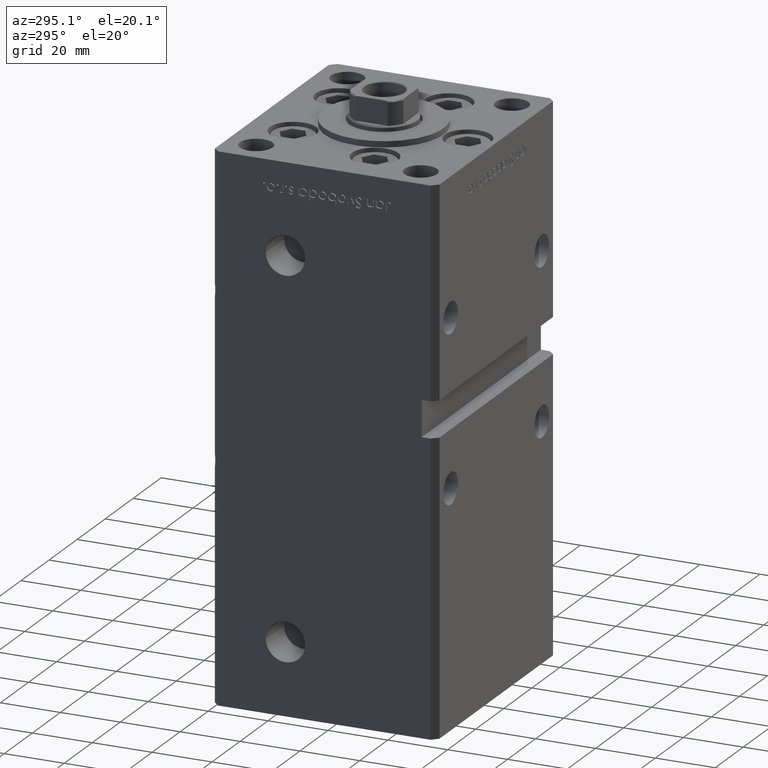
[diagram: clean part render]
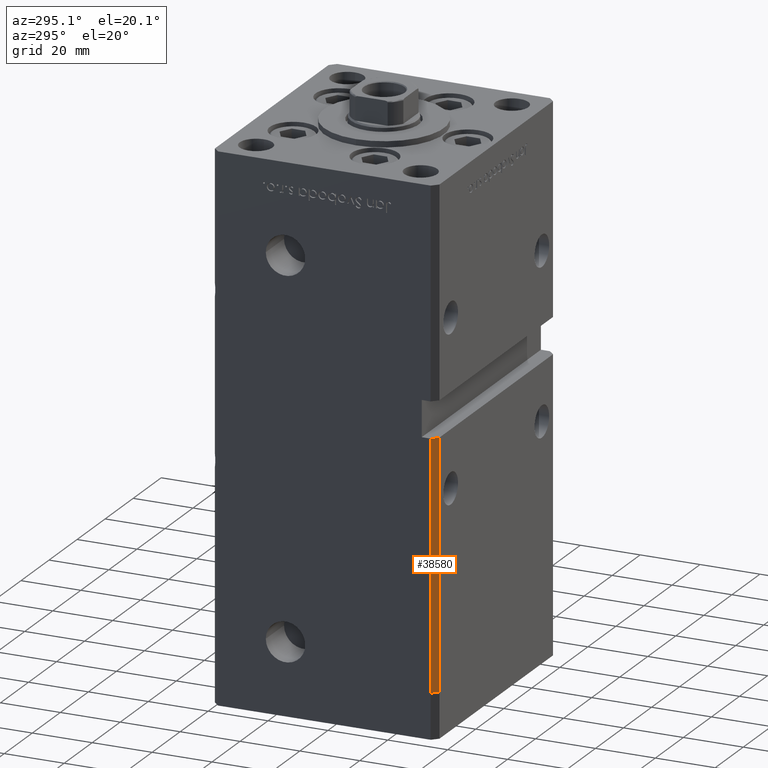
[diagram: same view with one face highlighted and labeled with its STEP entity id]
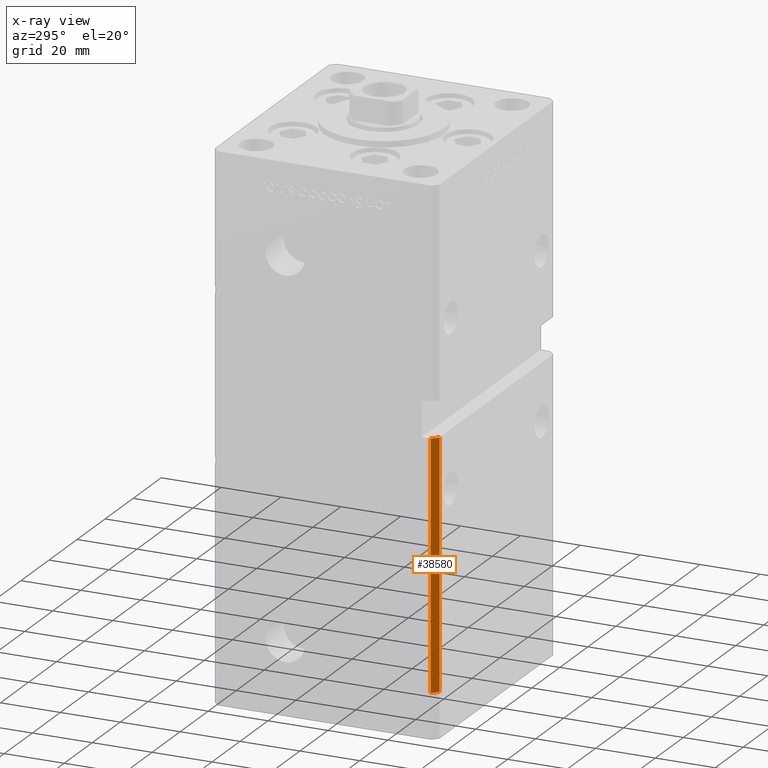
[diagram: x-ray of the same camera — body ghosted, the highlighted face saturated]
A machine part, auxiliary view. The second image highlights one B-rep face of the part: STEP entity #38580.
The next image is the same camera in x-ray: the body ghosted, the highlighted face saturated — about 0% of this face is hidden behind the body in this view.
In plain terms, the highlighted planar face has unit normal (0.7071, 0.7071, 0).
Its self-contained STEP definition (entity closure, byte-faithful):
#100 = AXIS2_PLACEMENT_3D ( 'NONE', #38107, #26287, #30844 ) ;
#2326 = CARTESIAN_POINT ( 'NONE',  ( -40.49999999999998579, -37.50000000000000711, 0.000000000000000000 ) ) ;
#4829 = ORIENTED_EDGE ( 'NONE', *, *, #19414, .T. ) ;
#5032 = PLANE ( 'NONE',  #100 ) ;
#7201 = CARTESIAN_POINT ( 'NONE',  ( -42.49999999999998579, -35.50000000000000711, 82.00000000000000000 ) ) ;
#7615 = VECTOR ( 'NONE', #22581, 1000.000000000000000 ) ;
#10308 = DIRECTION ( 'NONE',  ( 0.7071067811865474617, -0.7071067811865474617, 0.000000000000000000 ) ) ;
#13216 = ORIENTED_EDGE ( 'NONE', *, *, #39800, .T. ) ;
#14959 = VERTEX_POINT ( 'NONE', #18241 ) ;
#15550 = DIRECTION ( 'NONE',  ( -0.7071067811865474617, 0.7071067811865474617, 0.000000000000000000 ) ) ;
#16876 = LINE ( 'NONE', #33260, #42268 ) ;
#18190 = EDGE_CURVE ( 'NONE', #14959, #27930, #35720, .T. ) ;
#18241 = CARTESIAN_POINT ( 'NONE',  ( -40.49999999999998579, -37.50000000000000711, 82.00000000000000000 ) ) ;
#18388 = CARTESIAN_POINT ( 'NONE',  ( -42.49999999999998579, -35.50000000000000711, 0.000000000000000000 ) ) ;
#19180 = LINE ( 'NONE', #18388, #21624 ) ;
#19414 = EDGE_CURVE ( 'NONE', #27930, #51203, #42996, .T. ) ;
#21624 = VECTOR ( 'NONE', #10308, 1000.000000000000114 ) ;
#22581 = DIRECTION ( 'NONE',  ( -0.000000000000000000, -0.000000000000000000, -1.000000000000000000 ) ) ;
#23829 = EDGE_CURVE ( 'NONE', #14959, #37892, #16876, .T. ) ;
#26287 = DIRECTION ( 'NONE',  ( 0.7071067811865475727, 0.7071067811865475727, -0.000000000000000000 ) ) ;
#27930 = VERTEX_POINT ( 'NONE', #29221 ) ;
#29221 = CARTESIAN_POINT ( 'NONE',  ( -42.49999999999998579, -35.49999999999996447, 82.00000000000000000 ) ) ;
#30844 = DIRECTION ( 'NONE',  ( -0.7071067811865474617, 0.7071067811865474617, 0.000000000000000000 ) ) ;
#30902 = CARTESIAN_POINT ( 'NONE',  ( -42.49999999999998579, -35.50000000000000711, 148.5000000000000000 ) ) ;
#33260 = CARTESIAN_POINT ( 'NONE',  ( -40.49999999999998579, -37.50000000000000711, 148.5000000000000000 ) ) ;
#33803 = FACE_OUTER_BOUND ( 'NONE', #42799, .T. ) ;
#35720 = LINE ( 'NONE', #7201, #52373 ) ;
#37892 = VERTEX_POINT ( 'NONE', #2326 ) ;
#38107 = CARTESIAN_POINT ( 'NONE',  ( -42.49999999999998579, -35.50000000000000711, 148.5000000000000000 ) ) ;
#38580 = ADVANCED_FACE ( 'NONE', ( #33803 ), #5032, .F. ) ;
#39800 = EDGE_CURVE ( 'NONE', #51203, #37892, #19180, .T. ) ;
#42268 = VECTOR ( 'NONE', #49653, 1000.000000000000000 ) ;
#42799 = EDGE_LOOP ( 'NONE', ( #50005, #43662, #4829, #13216 ) ) ;
#42996 = LINE ( 'NONE', #30902, #7615 ) ;
#43662 = ORIENTED_EDGE ( 'NONE', *, *, #18190, .T. ) ;
#44344 = CARTESIAN_POINT ( 'NONE',  ( -42.49999999999998579, -35.50000000000000711, 0.000000000000000000 ) ) ;
#49653 = DIRECTION ( 'NONE',  ( -0.000000000000000000, -0.000000000000000000, -1.000000000000000000 ) ) ;
#50005 = ORIENTED_EDGE ( 'NONE', *, *, #23829, .F. ) ;
#51203 = VERTEX_POINT ( 'NONE', #44344 ) ;
#52373 = VECTOR ( 'NONE', #15550, 1000.000000000000114 ) ;